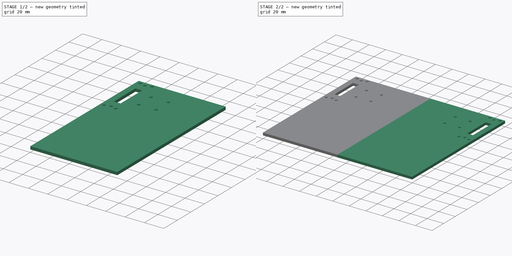
[diagram: build sequence overview — one tinted view per stage of 2, left to right]
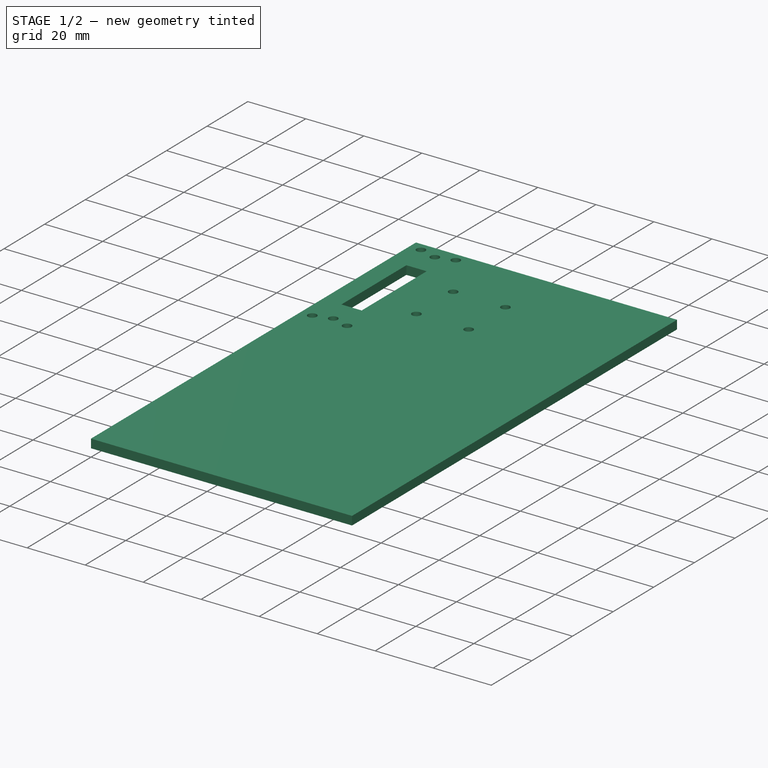
[diagram: stage 1 of 2 — iso view after this stage's code; geometry added in this stage tinted green]
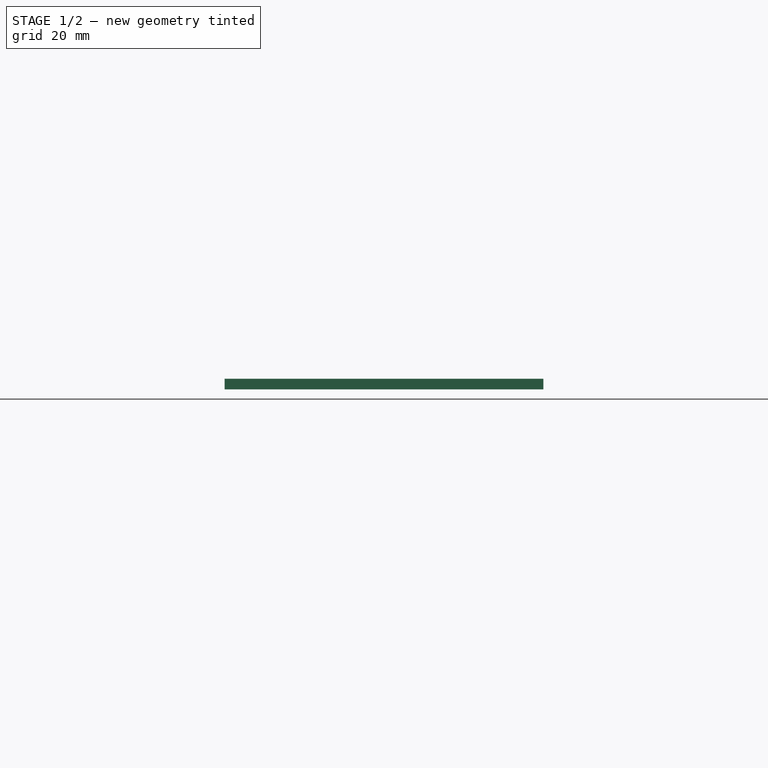
[diagram: stage 1 of 2 — front view after this stage's code; geometry added in this stage tinted green]
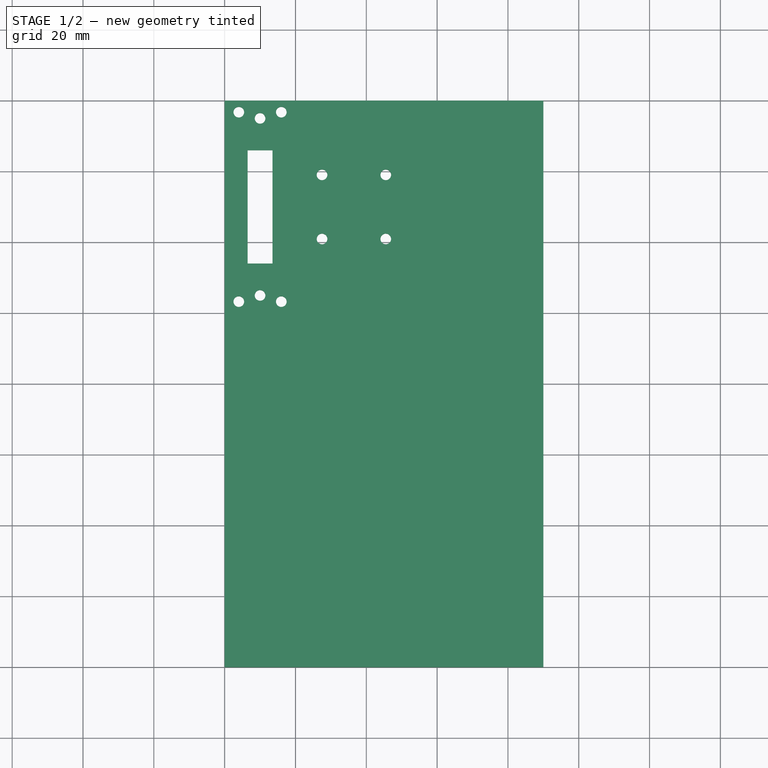
[diagram: stage 1 of 2 — top view after this stage's code; geometry added in this stage tinted green]
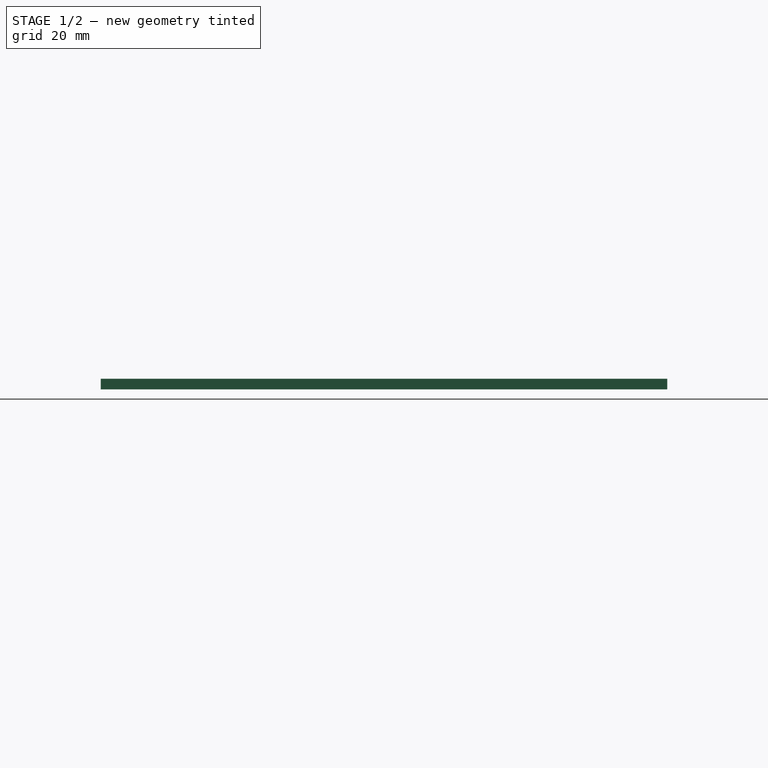
[diagram: stage 1 of 2 — right view after this stage's code; geometry added in this stage tinted green]
FCSTD DOCUMENT  (FreeCAD 0.16R6707 (Git))
Label: étage_haut
License: All rights reserved
LicenseURL: http://en.wikipedia.org/wiki/All_rights_reserved
objects: Sketcher::SketchObject×1, PartDesign::Pad×1, PartDesign::Mirrored×1
note: 4 computed .brp shape members not serialized (recipe doc carries the construction recipe); baked Part::Feature solids carry a one-line shape summary decoded from their .brp

FEATURE [Sketcher::SketchObject] Sketch
  sketch-geometry (30):
    g0: LineSegment StartX=0 StartY=0 StartZ=0 EndX=90 EndY=0 EndZ=0
    g1: LineSegment StartX=90 StartY=0 StartZ=0 EndX=90 EndY=160 EndZ=0
    g2: LineSegment StartX=90 StartY=160 StartZ=0 EndX=0 EndY=160 EndZ=0
    g3: LineSegment StartX=0 StartY=160 StartZ=0 EndX=0 EndY=0 EndZ=0
    g4: GeomPoint [constr] X=10 Y=155 Z=0
    g5: GeomPoint [constr] X=10 Y=105 Z=0
    g6: Circle CenterX=10 CenterY=155 CenterZ=0 NormalX=0 NormalY=0 NormalZ=1 Radius=1.5
    g7: Circle CenterX=10 CenterY=105 CenterZ=0 NormalX=0 NormalY=0 NormalZ=1 Radius=1.5
    g8: LineSegment StartX=6.5 StartY=146 StartZ=0 EndX=13.5 EndY=146 EndZ=0
    g9: LineSegment StartX=13.5 StartY=146 StartZ=0 EndX=13.5 EndY=114 EndZ=0
    g10: LineSegment StartX=13.5 StartY=114 StartZ=0 EndX=6.5 EndY=114 EndZ=0
    g11: LineSegment StartX=6.5 StartY=114 StartZ=0 EndX=6.5 EndY=146 EndZ=0
    g12: GeomPoint [constr] X=27.5 Y=139.05 Z=0
    g13: GeomPoint [constr] X=45.5 Y=139.05 Z=0
    g14: GeomPoint [constr] X=27.5 Y=120.95 Z=0
    g15: GeomPoint [constr] X=45.5 Y=120.95 Z=0
    g16: GeomPoint [constr] X=16.5 Y=151.15 Z=0
    g17: GeomPoint [constr] X=16.5 Y=130 Z=0
    g18: Circle CenterX=27.5 CenterY=139.05 CenterZ=0 NormalX=0 NormalY=0 NormalZ=1 Radius=1.5
    g19: Circle CenterX=45.5 CenterY=139.05 CenterZ=0 NormalX=0 NormalY=0 NormalZ=1 Radius=1.5
    g20: Circle CenterX=27.5 CenterY=120.95 CenterZ=0 NormalX=0 NormalY=0 NormalZ=1 Radius=1.5
    g21: Circle CenterX=45.5 CenterY=120.95 CenterZ=0 NormalX=0 NormalY=0 NormalZ=1 Radius=1.5
    g22: GeomPoint [constr] X=0 Y=153.5 Z=0
    g23: Circle CenterX=4 CenterY=156.75 CenterZ=0 NormalX=0 NormalY=0 NormalZ=1 Radius=1.5
    g24: Circle CenterX=16 CenterY=156.75 CenterZ=0 NormalX=0 NormalY=0 NormalZ=1 Radius=1.5
    g25: GeomPoint [constr] X=20 Y=153.5 Z=0
    g26: GeomPoint [constr] X=0 Y=106.5 Z=0
    g27: GeomPoint [constr] X=20 Y=106.5 Z=0
    g28: Circle CenterX=4 CenterY=103.25 CenterZ=0 NormalX=0 NormalY=0 NormalZ=1 Radius=1.5
    g29: Circle CenterX=16 CenterY=103.25 CenterZ=0 NormalX=0 NormalY=0 NormalZ=1 Radius=1.5
  constraints (71):
    c: Coincident(g0,g1)
    c: Coincident(g1,g2)
    c: Coincident(g2,g3)
    c: Coincident(g3,g0)
    c: Horizontal(g0)
    c: Horizontal(g2)
    c: Vertical(g1)
    c: Vertical(g3)
    c: Coincident(g0,g-1)
    c: Distance(g2) = 90
    c: Distance(g3) = 160
    c: DistanceX(g4,g5) = 0
    c: DistanceY(g5,g4) = 50
    c: DistanceX(g2,g4) = 10
    c: DistanceY(g4,g2) = 5
    c: Coincident(g6,g4)
    c: Coincident(g7,g5)
    c: Radius(g6) = 1.5
    c: Equal(g6,g7)
    c: Coincident(g8,g9)
    c: Coincident(g9,g10)
    c: Coincident(g10,g11)
    c: Coincident(g11,g8)
    c: Horizontal(g8)
    c: Horizontal(g10)
    c: Vertical(g9)
    c: Vertical(g11)
    c: DistanceX(g8) = 6.5
    c: DistanceY(g8,g2) = 14
    c: Distance(g11) = 32
    c: Distance(g10) = 7
    c: DistanceY(g13,g12) = 0
    c: DistanceY(g15,g14) = 0
    c: DistanceX(g12,g13) = 18
    c: DistanceX(g14,g15) = 18
    c: DistanceX(g12,g14) = 0
    c: DistanceY(g14,g12) = 18.1
    c: DistanceY(g12,g16) = 12.1
    c: DistanceX(g16,g12) = 11
    c: DistanceY(g17,g16) = 21.15
    c: DistanceX(g17,g16) = 0
    c: DistanceY(g17,g8) = 16
    c: Coincident(g18,g12)
    c: Coincident(g19,g13)
    c: Coincident(g20,g14)
    c: Coincident(g21,g15)
    c: Radius(g21) = 1.5
    c: Equal(g21,g19)
    c: Equal(g21,g18)
    c: Equal(g21,g20)
    c: DistanceX(g8,g17) = 3
    c: DistanceX(g22,g4) = 10
    c: DistanceY(g4,g22) = -1.5
    c: DistanceX(g22,g23) = 4
    c: DistanceY(g22,g23) = 3.25
    c: DistanceY(g24,g23) = 0
    c: DistanceY(g22,g25) = 0
    c: DistanceX(g22,g25) = 20
    c: DistanceX(g24,g25) = 4
    c: Radius(g23) = 1.5
    c: Equal(g23,g24)
    c: DistanceX(g26,g5) = 10
    c: DistanceY(g5,g26) = 1.5
    c: DistanceY(g27,g26) = 0
    c: DistanceX(g26,g27) = 20
    c: DistanceY(g29,g27) = 3.25
    c: DistanceX(g29,g27) = 4
    c: DistanceX(g26,g28) = 4
    c: DistanceY(g29,g28) = 0
    c: Radius(g28) = 1.5
    c: Equal(g28,g29)
FEATURE [PartDesign::Pad] Pad
  Length = 3
  Length2 = 100
  Sketch = -> Sketch
  Type = 0
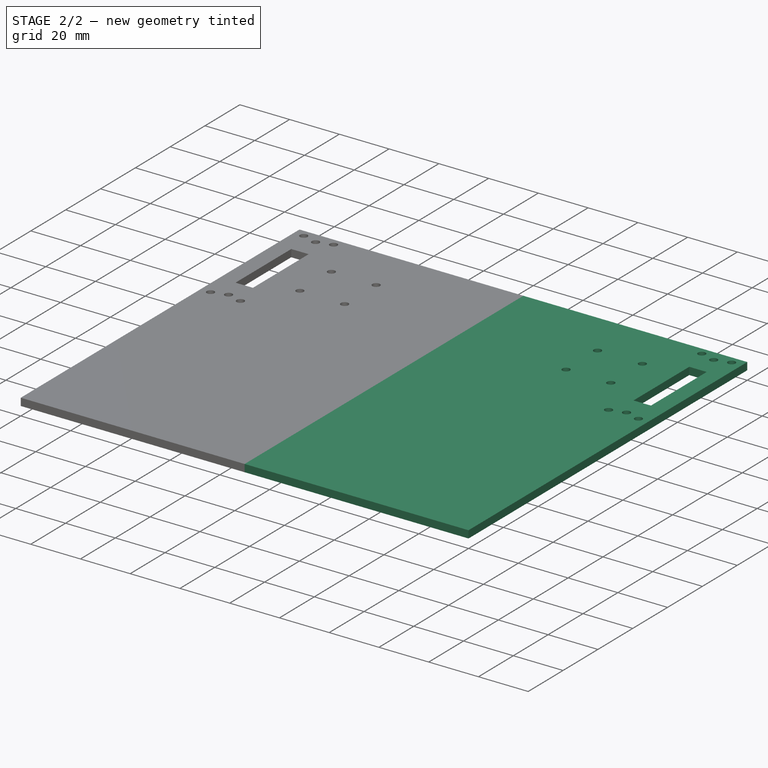
[diagram: stage 2 of 2 — iso view after this stage's code; geometry added in this stage tinted green]
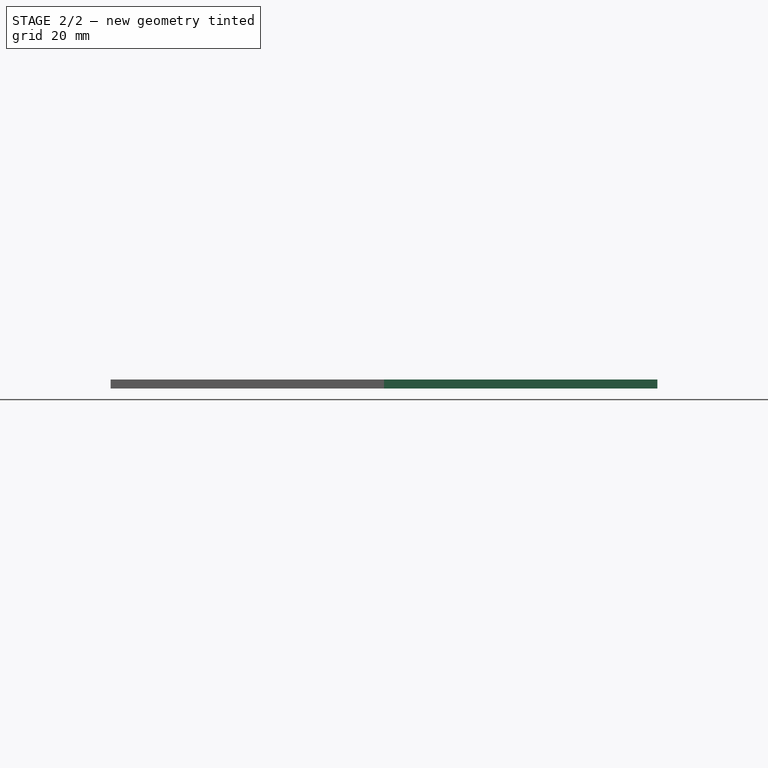
[diagram: stage 2 of 2 — front view after this stage's code; geometry added in this stage tinted green]
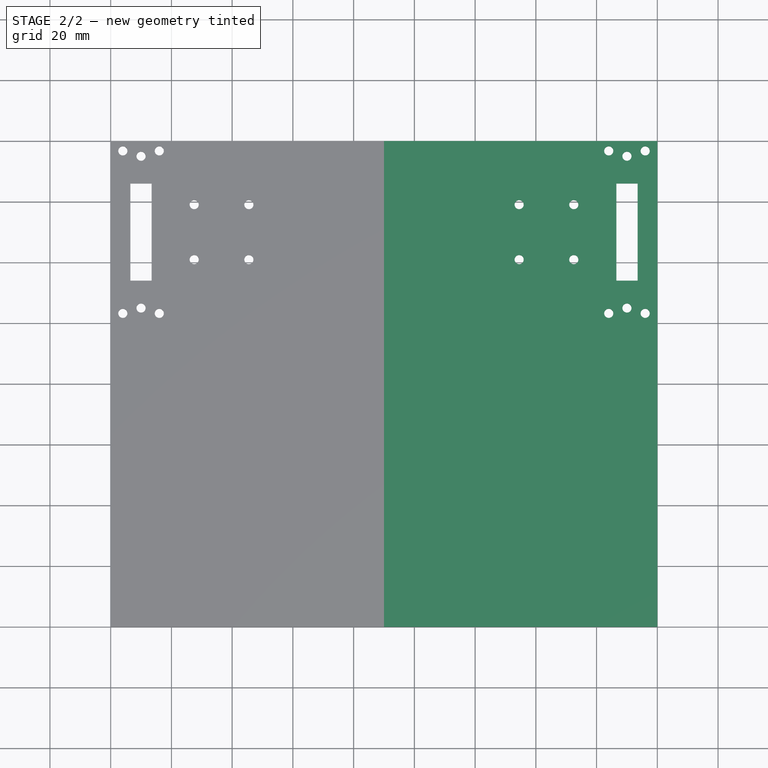
[diagram: stage 2 of 2 — top view after this stage's code; geometry added in this stage tinted green]
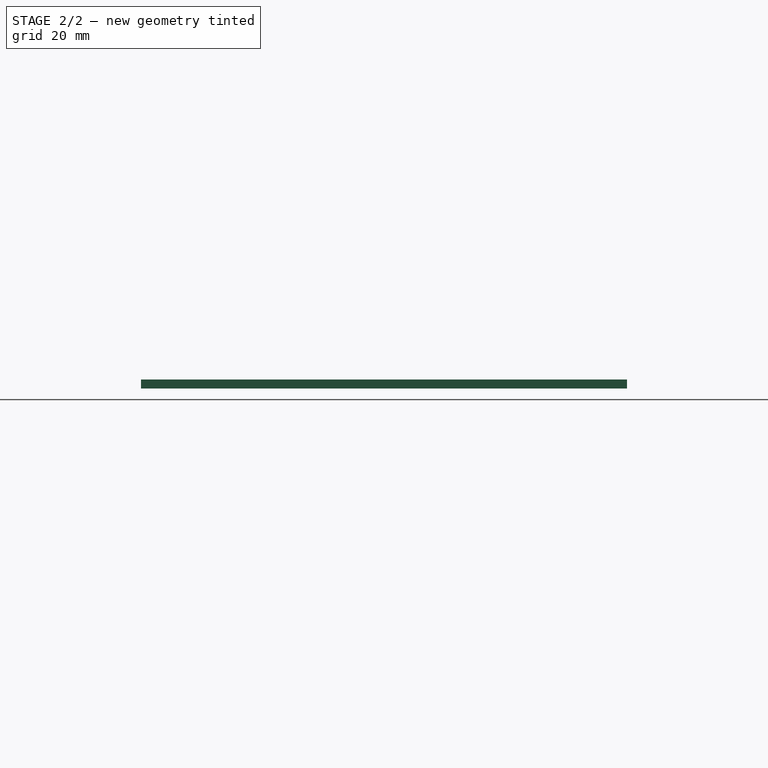
[diagram: stage 2 of 2 — right view after this stage's code; geometry added in this stage tinted green]
FEATURE [PartDesign::Mirrored] Mirrored
  MirrorPlane = -> Pad [Face2]
  Originals = -> [Pad]
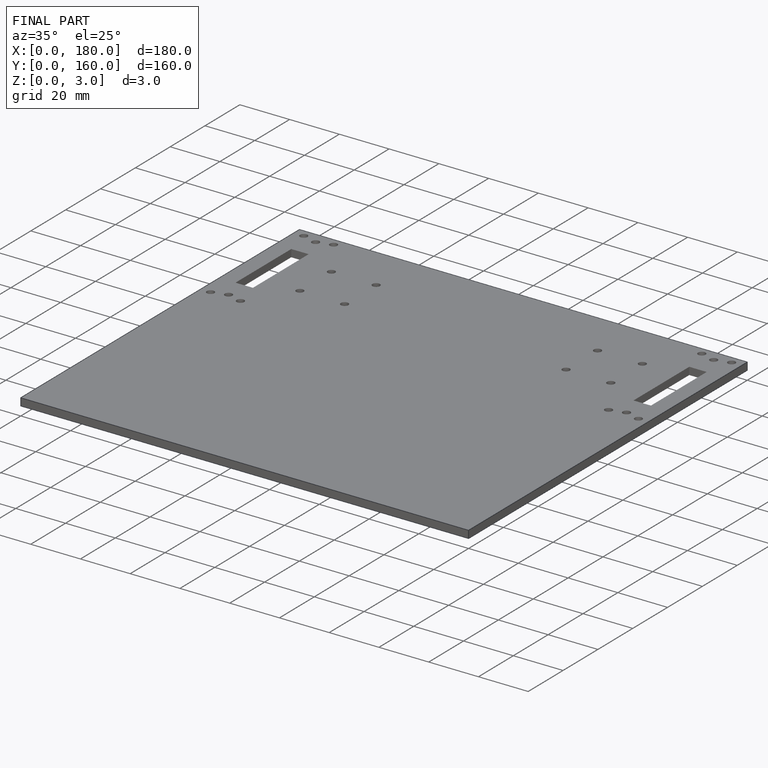
[diagram: finished part — iso view with bounding-box wireframe]
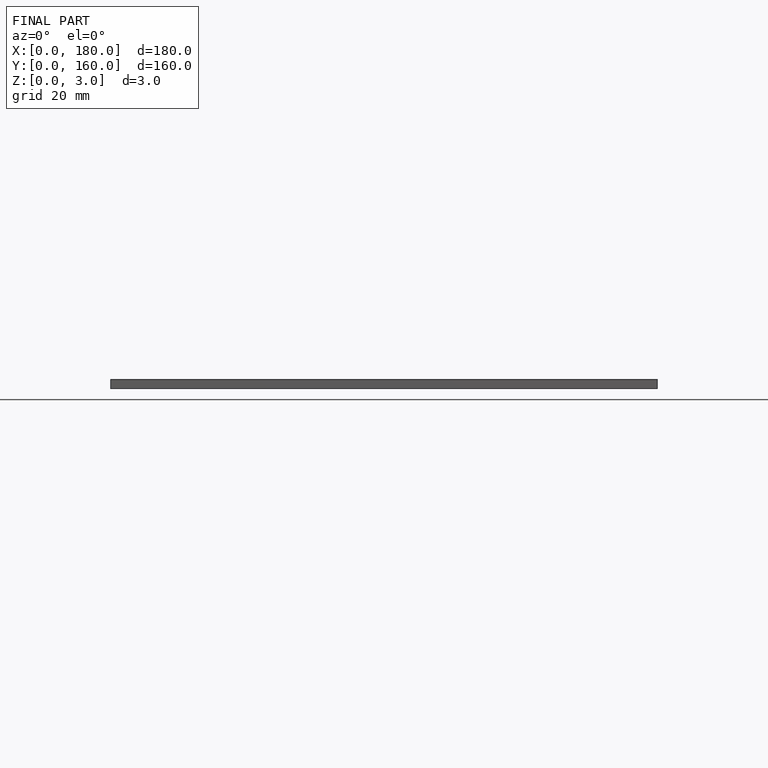
[diagram: finished part — front view with bounding-box wireframe]
